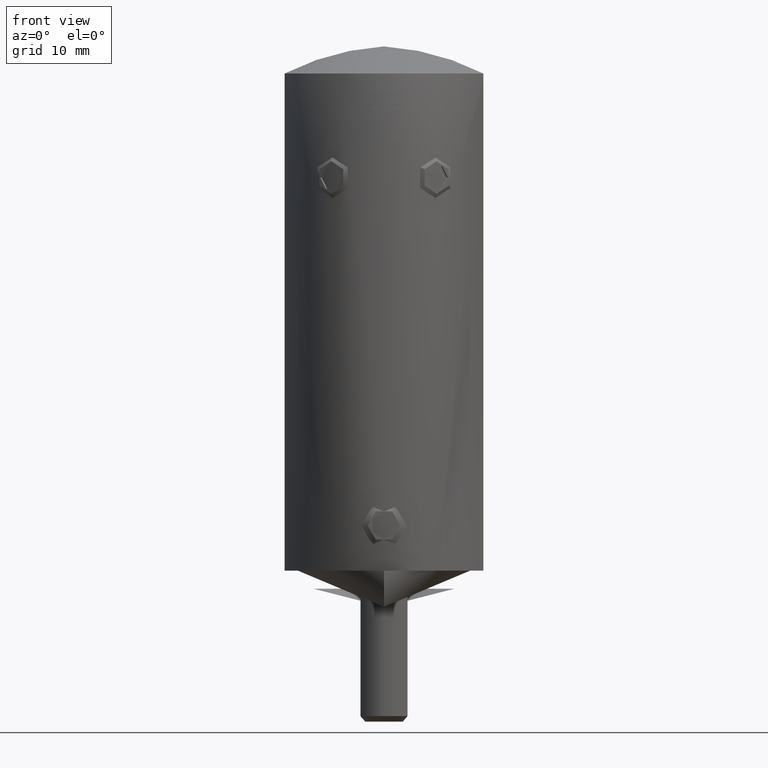
[diagram: clean part render]
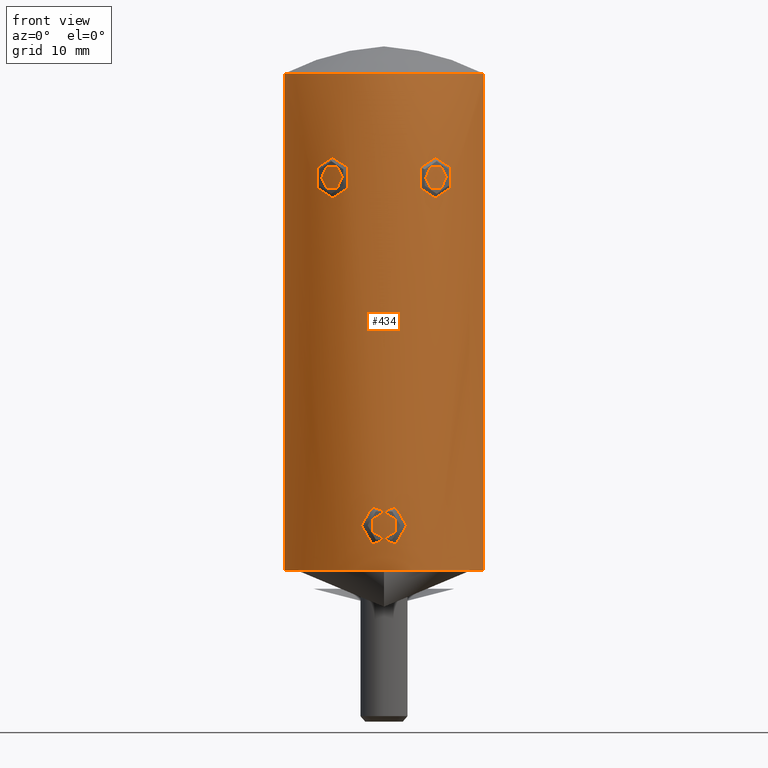
[diagram: same view with one face highlighted and labeled with its STEP entity id]
A machine part, front view. The second image highlights one B-rep face of the part: STEP entity #434.
In plain terms, the highlighted cylindrical surface (partial cylindrical patch) has radius 11 mm, axis along (0, 0, 1).
Its self-contained STEP definition (entity closure, byte-faithful):
#54 = B_SPLINE_CURVE_WITH_KNOTS ( 'NONE', 3,
 ( #2927, #1413, #3292, #6622, #21931, #10059, #18655, #17163, #8357, #10125, #22150, #4951, #8559, #11806, #16935, #6541, #22072, #8500, #20363, #1484, #13435, #11875, #13506, #22219, #6842, #11653, #6698, #20436, #18879, #1558, #8420, #13580, #15333, #5023, #1347, #17088, #15114, #15190, #13368, #3150 ),
 .UNSPECIFIED., .F., .F.,
 ( 4, 2, 2, 2, 2, 2, 2, 2, 2, 2, 2, 2, 2, 2, 2, 2, 2, 2, 2, 4 ),
 ( 4.569706188381530106E-18, 0.0007447471617333573145, 0.001489494323466710075, 0.002234241485200063378, 0.002978988646933415814, 0.004468482970400122420, 0.005957977293866829026, 0.007447471617333535632, 0.008936965940800243105, 0.01191595458773367713, 0.01340544891120040369, 0.01489494323466713024, 0.01638443755813385680, 0.01787393188160057989, 0.01861867904333395357, 0.01936342620506732379, 0.02085292052853405381, 0.02159766769026742056, 0.02234241485200078384, 0.02383190917546752080 ),
 .UNSPECIFIED. ) ;
#119 = CARTESIAN_POINT ( 'NONE',  ( -1.813320843293642483E-15, -10.99999999999999645, 2.584844900694855063 ) ) ;
#130 = CARTESIAN_POINT ( 'NONE',  ( 7.083958268796568092, -8.418567494383852434, 45.42891471491062561 ) ) ;
#245 = CARTESIAN_POINT ( 'NONE',  ( -5.967326013728599499, -9.242198139794622236, 45.91528120711718230 ) ) ;
#301 = VERTEX_POINT ( 'NONE', #12813 ) ;
#320 = CARTESIAN_POINT ( 'NONE',  ( -7.804981806833529490, -7.751274673826406669, 43.81765462899171126 ) ) ;
#392 = CARTESIAN_POINT ( 'NONE',  ( 1.535022905125253079, -10.89323192799169604, 6.918116975734399432 ) ) ;
#401 = CARTESIAN_POINT ( 'NONE',  ( -5.264747622690101103, -9.659641724171692090, 45.83722599151862198 ) ) ;
#402 = CARTESIAN_POINT ( 'NONE',  ( 9.168876221615315458, -6.077448697450544834, 43.81600431467556689 ) ) ;
#434 = ADVANCED_FACE ( 'NONE', ( #6985, #5948, #20171, #15067 ), #10449, .T. ) ;
#465 = CARTESIAN_POINT ( 'NONE',  ( 1.543890676010165386, -10.89363039259129273, 3.069276441871684469 ) ) ;
#543 = CARTESIAN_POINT ( 'NONE',  ( 2.430721202019303195, -10.72812621128811195, 4.371317447606209328 ) ) ;
#625 = CARTESIAN_POINT ( 'NONE',  ( 0.002621827913309107781, -10.99999968754628021, 7.415153783528229070 ) ) ;
#635 = CARTESIAN_POINT ( 'NONE',  ( 9.235293332214252970, -5.976038060906659233, 44.79945591862028209 ) ) ;
#1018 = ORIENTED_EDGE ( 'NONE', *, *, #13071, .F. ) ;
#1028 = VERTEX_POINT ( 'NONE', #119 ) ;
#1040 = CARTESIAN_POINT ( 'NONE',  ( -4.355607442891392900, -10.10160472704698975, 41.68007258356627176 ) ) ;
#1112 = CARTESIAN_POINT ( 'NONE',  ( -1.261211241403978667, -10.92831925419362626, 2.905472548706910185 ) ) ;
#1172 = DIRECTION ( 'NONE',  ( 1.000000000000000000, 0.000000000000000000, 0.000000000000000000 ) ) ;
#1182 = CARTESIAN_POINT ( 'NONE',  ( 10.36446980822711872, -3.690835795071915282, 37.26007699895405523 ) ) ;
#1258 = CARTESIAN_POINT ( 'NONE',  ( -1.268443744210189239, -10.93091935414429905, 7.108644643610205094 ) ) ;
#1329 = CARTESIAN_POINT ( 'NONE',  ( -0.3276201267070146250, -10.99632626431258409, 7.399832416807043955 ) ) ;
#1347 = CARTESIAN_POINT ( 'NONE',  ( -10.73363410085024405, -2.417583941322503982, 36.57834139585172295 ) ) ;
#1393 = CARTESIAN_POINT ( 'NONE',  ( 10.93266799829689440, -1.239499988441308931, 36.25128392030593005 ) ) ;
#1397 = VECTOR ( 'NONE', #21452, 1000.000000000000000 ) ;
#1413 = CARTESIAN_POINT ( 'NONE',  ( -10.99999999999998934, -0.2522254579425806664, 53.39940828047591737 ) ) ;
#1484 = CARTESIAN_POINT ( 'NONE',  ( -9.169022805507466956, -6.077224059141694390, 43.81796395058150040 ) ) ;
#1500 = CARTESIAN_POINT ( 'NONE',  ( 4.138493009041316562, -10.19248796723455541, 45.09683115607417392 ) ) ;
#1536 = CARTESIAN_POINT ( 'NONE',  ( -5.264602615324019297, -9.659732878582312665, 41.16277964135916534 ) ) ;
#1558 = CARTESIAN_POINT ( 'NONE',  ( -10.07994095445507199, -4.407312253728409956, 37.87915800364847740 ) ) ;
#1575 = CARTESIAN_POINT ( 'NONE',  ( 3.545063004570461196, -10.41309407878493154, 43.50247619131341281 ) ) ;
#1597 = CARTESIAN_POINT ( 'NONE',  ( 5.689463253177241775, -9.415786239710421057, 41.08485959924116315 ) ) ;
#1608 = DIRECTION ( 'NONE',  ( -0.000000000000000000, -0.000000000000000000, 1.000000000000000000 ) ) ;
#1658 = B_SPLINE_CURVE_WITH_KNOTS ( 'NONE', 3,
 ( #1575, #6932, #20448, #12030, #15208, #20381, #1500, #13521, #22308, #3237, #16952, #10143, #3308, #5112, #13951, #1943, #20876, #15637, #5336, #3801, #130, #8720, #5493, #19253, #17462, #10426, #3586, #12164 ),
 .UNSPECIFIED., .F., .F.,
 ( 4, 2, 2, 2, 2, 2, 2, 2, 2, 2, 2, 2, 2, 4 ),
 ( 0.5000000000000000000, 0.5625000000000016653, 0.5937500000000017764, 0.6250000000000019984, 0.6562500000000022204, 0.6875000000000024425, 0.7187500000000026645, 0.7500000000000028866, 0.7812500000000031086, 0.8125000000000033307, 0.8750000000000031086, 0.9062500000000026645, 0.9375000000000022204, 1.000000000000000000 ),
 .UNSPECIFIED. ) ;
#1943 = CARTESIAN_POINT ( 'NONE',  ( 5.970656882540882116, -9.240046677388182417, 45.91502748698402314 ) ) ;
#1988 = CARTESIAN_POINT ( 'NONE',  ( -4.717684471826848913, -9.941608254227404018, 45.60877343995291966 ) ) ;
#2509 = ORIENTED_EDGE ( 'NONE', *, *, #12993, .T. ) ;
#2685 = CARTESIAN_POINT ( 'NONE',  ( -2.179285043678784284, -10.78236625296382556, 3.788823219971172218 ) ) ;
#2689 = ORIENTED_EDGE ( 'NONE', *, *, #16911, .F. ) ;
#2823 = DIRECTION ( 'NONE',  ( -0.000000000000000000, -0.000000000000000000, 1.000000000000000000 ) ) ;
#2927 = CARTESIAN_POINT ( 'NONE',  ( -10.99999999999999645, 3.179853121175712002E-15, 53.39940828047591737 ) ) ;
#2980 = CARTESIAN_POINT ( 'NONE',  ( -4.139399588588112522, -10.19210995349174986, 41.90222231646872331 ) ) ;
#3038 = CARTESIAN_POINT ( 'NONE',  ( 5.126284629172893403, -9.733679403218731707, 41.20864326721935100 ) ) ;
#3044 = CARTESIAN_POINT ( 'NONE',  ( -10.99999999999999645, 1.347111479062088010E-15, 58.00000000000000000 ) ) ;
#3054 = CARTESIAN_POINT ( 'NONE',  ( -4.722979850324801276, -9.935418067239126572, 41.40451927373678842 ) ) ;
#3129 = CARTESIAN_POINT ( 'NONE',  ( -5.689946788311072368, -9.415494047968376634, 41.08483023268967571 ) ) ;
#3150 = CARTESIAN_POINT ( 'NONE',  ( -10.99999999999999645, 1.353269207583812273E-15, 36.14600281952412786 ) ) ;
#3237 = CARTESIAN_POINT ( 'NONE',  ( 4.723918369379720872, -9.934956473713365099, 45.59595233822931704 ) ) ;
#3255 = CARTESIAN_POINT ( 'NONE',  ( 7.618695975550138222, -7.934712000149043654, 42.42702881918065572 ) ) ;
#3269 = CARTESIAN_POINT ( 'NONE',  ( -7.805173626811875209, -7.751081515202912442, 43.50247619131341281 ) ) ;
#3286 = EDGE_CURVE ( 'NONE', #19995, #1028, #21209, .T. ) ;
#3292 = CARTESIAN_POINT ( 'NONE',  ( -10.99135156056391693, -0.4987275175918595704, 53.36875522293463092 ) ) ;
#3308 = CARTESIAN_POINT ( 'NONE',  ( 5.267424675921898114, -9.658170671119970407, 45.83795955608639616 ) ) ;
#3341 = CARTESIAN_POINT ( 'NONE',  ( 10.99999999999999645, -1.832169210965423057E-20, 53.39940828047591737 ) ) ;
#3586 = CARTESIAN_POINT ( 'NONE',  ( 7.805226028912490399, -7.751028747393309715, 43.81562291544130261 ) ) ;
#3638 = VERTEX_POINT ( 'NONE', #5500 ) ;
#3702 = CARTESIAN_POINT ( 'NONE',  ( -3.865003218479963198, -10.29904843934486713, 44.71000965139074168 ) ) ;
#3773 = DIRECTION ( 'NONE',  ( -0.000000000000000000, -0.000000000000000000, 1.000000000000000000 ) ) ;
#3801 = CARTESIAN_POINT ( 'NONE',  ( 6.867361557435126329, -8.598340926928944583, 45.60877343997567124 ) ) ;
#3852 = CARTESIAN_POINT ( 'NONE',  ( 9.186107045077074318, -6.051109553789102868, 41.83785624538884207 ) ) ;
#3930 = CARTESIAN_POINT ( 'NONE',  ( 1.995493121734534858, -10.81788920119726960, 3.524738894744726458 ) ) ;
#4015 = CARTESIAN_POINT ( 'NONE',  ( 1.116343252719524504, -10.94426300031696009, 7.169244775428262884 ) ) ;
#4025 = CARTESIAN_POINT ( 'NONE',  ( 9.631011627530943642, -5.316813198380810235, 47.65461018336076648 ) ) ;
#4356 = LINE ( 'NONE', #7937, #1397 ) ;
#4421 = CARTESIAN_POINT ( 'NONE',  ( -0.3315329495192520515, -10.99999999999999822, 2.584844930053908030 ) ) ;
#4500 = CARTESIAN_POINT ( 'NONE',  ( -0.8104466578491293927, -10.97117418873382455, 7.291497780559780928 ) ) ;
#4513 = CARTESIAN_POINT ( 'NONE',  ( 10.99999999999999289, 0.000000000000000000, 55.00000000000000000 ) ) ;
#4574 = CARTESIAN_POINT ( 'NONE',  ( -2.256864148904698109, -10.76618397735614430, 6.071739856479844377 ) ) ;
#4636 = CARTESIAN_POINT ( 'NONE',  ( 10.95786264964114132, -0.9932367454756375613, 36.21171868174418051 ) ) ;
#4673 = CIRCLE ( 'NONE', #18471, 10.99999999999999289 ) ;
#4777 = CARTESIAN_POINT ( 'NONE',  ( 4.721090920897333731, -9.936299440280055961, 41.40577892337500288 ) ) ;
#4791 = CARTESIAN_POINT ( 'NONE',  ( -7.572403671502473621, -7.979692977154612343, 42.28070653199637263 ) ) ;
#4863 = CARTESIAN_POINT ( 'NONE',  ( -6.861096738142905771, -8.599075392163483045, 41.40577892343836197 ) ) ;
#4873 = VERTEX_POINT ( 'NONE', #4513 ) ;
#4917 = CARTESIAN_POINT ( 'NONE',  ( 7.757859172115715296, -7.799509769101687695, 42.86600142989421158 ) ) ;
#4951 = CARTESIAN_POINT ( 'NONE',  ( -10.29255199365515772, -3.892950636535779552, 50.72570193885132284 ) ) ;
#4991 = CARTESIAN_POINT ( 'NONE',  ( 7.425485977187488373, -8.116079469776769528, 42.02587819805969360 ) ) ;
#5023 = CARTESIAN_POINT ( 'NONE',  ( -10.68044981376455560, -2.641693695686942789, 36.66960072601213483 ) ) ;
#5065 = CARTESIAN_POINT ( 'NONE',  ( -3.545061720958730955, -10.41309451578122669, 43.49999999999998579 ) ) ;
#5112 = CARTESIAN_POINT ( 'NONE',  ( 5.548377568054563724, -9.499554189081811373, 45.89959423356607005 ) ) ;
#5225 = LINE ( 'NONE', #8269, #18437 ) ;
#5242 = CARTESIAN_POINT ( 'NONE',  ( -10.99999999999999645, 1.353269207583812273E-15, 36.14600281952412786 ) ) ;
#5336 = CARTESIAN_POINT ( 'NONE',  ( 6.503923870768374194, -8.872542175008756971, 45.79025270535446879 ) ) ;
#5493 = CARTESIAN_POINT ( 'NONE',  ( 7.426268274342174180, -8.115367407106797160, 44.97289511913715643 ) ) ;
#5500 = CARTESIAN_POINT ( 'NONE',  ( -10.99999999999999289, 1.347111479062087813E-15, 55.00000000000000000 ) ) ;
#5533 = CARTESIAN_POINT ( 'NONE',  ( -7.560285272212968088, -7.990662585790829553, 44.71466949273472835 ) ) ;
#5534 = CARTESIAN_POINT ( 'NONE',  ( 0.000000000000000000, 0.000000000000000000, 0.000000000000000000 ) ) ;
#5609 = CARTESIAN_POINT ( 'NONE',  ( 1.265772666320305051, -10.93117442413804596, 2.890181047733279662 ) ) ;
#5620 = CARTESIAN_POINT ( 'NONE',  ( -6.500053701618306867, -8.875404604138990905, 45.79194129288713810 ) ) ;
#5693 = CARTESIAN_POINT ( 'NONE',  ( -5.546932442110414918, -9.500409793932190539, 45.89942136837100861 ) ) ;
#5694 = CARTESIAN_POINT ( 'NONE',  ( 10.87563798187002639, -1.664838547025348170, 52.95395550353870107 ) ) ;
#5771 = CARTESIAN_POINT ( 'NONE',  ( 2.381829622707508420, -10.73922843645829062, 4.217404884509523555 ) ) ;
#5779 = CARTESIAN_POINT ( 'NONE',  ( 9.899005222555114614, -4.801057188939706677, 49.01143292936338725 ) ) ;
#5842 = CARTESIAN_POINT ( 'NONE',  ( 2.256039582267046484, -10.76635616934929729, 3.926755654190321465 ) ) ;
#5850 = CARTESIAN_POINT ( 'NONE',  ( 9.284403859855997254, -5.900227396288967974, 45.29100354759611236 ) ) ;
#5948 = FACE_BOUND ( 'NONE', #7524, .T. ) ;
#6001 = CARTESIAN_POINT ( 'NONE',  ( 9.932215519004349957, -4.736873953609045174, 38.23098244837986215 ) ) ;
#6040 = EDGE_CURVE ( 'NONE', #17920, #20346, #21011, .T. ) ;
#6174 = CARTESIAN_POINT ( 'NONE',  ( -2.382856163159502216, -10.73900133748870367, 5.779816620065276744 ) ) ;
#6175 = CARTESIAN_POINT ( 'NONE',  ( -4.855665494462400922, -9.871452515081939438, 41.32930433189208941 ) ) ;
#6229 = CARTESIAN_POINT ( 'NONE',  ( 0.000000000000000000, 0.000000000000000000, 55.00000000000000000 ) ) ;
#6319 = CARTESIAN_POINT ( 'NONE',  ( -2.430626934631305414, -10.72814813956289903, 4.370817171179572469 ) ) ;
#6450 = CARTESIAN_POINT ( 'NONE',  ( -2.495562452211243176, -10.71322910456392208, 4.683362971068651959 ) ) ;
#6508 = B_SPLINE_CURVE_WITH_KNOTS ( 'NONE', 3,
 ( #15377, #320, #17578, #17504, #5533, #8979, #20917, #8905, #14234, #9062, #10610, #5620, #12362, #19299, #245, #12435, #5693, #401, #18783, #1988, #7262, #20990, #10691, #3702, #8472, #12287, #8539, #5065 ),
 .UNSPECIFIED., .F., .F.,
 ( 4, 2, 2, 2, 2, 2, 2, 2, 2, 2, 2, 2, 2, 4 ),
 ( 0.5000000000000000000, 0.5625000000000011102, 0.5937500000000009992, 0.6250000000000008882, 0.6562500000000008882, 0.6875000000000007772, 0.7187500000000006661, 0.7500000000000006661, 0.7812500000000005551, 0.8125000000000004441, 0.8750000000000006661, 0.9062500000000008882, 0.9375000000000011102, 1.000000000000000000 ),
 .UNSPECIFIED. ) ;
#6541 = CARTESIAN_POINT ( 'NONE',  ( -9.717539187263653844, -5.158495255006232405, 48.11555026792651546 ) ) ;
#6622 = CARTESIAN_POINT ( 'NONE',  ( -10.95879317033270084, -0.9815245868461859313, 53.25273729518058730 ) ) ;
#6698 = CARTESIAN_POINT ( 'NONE',  ( -9.663109020658437132, -5.264292116124048349, 39.02877772619955721 ) ) ;
#6711 = EDGE_LOOP ( 'NONE', ( #21058, #9198 ) ) ;
#6736 = CARTESIAN_POINT ( 'NONE',  ( 4.854168774372749517, -9.872201088604475316, 41.33002558955961092 ) ) ;
#6749 = CARTESIAN_POINT ( 'NONE',  ( -7.436173316924135968, -8.109199354610241883, 42.01615640583560207 ) ) ;
#6805 = CIRCLE ( 'NONE', #20828, 11.00000000000000000 ) ;
#6842 = CARTESIAN_POINT ( 'NONE',  ( -9.350936937472789978, -5.796166265188768207, 40.36935326248440248 ) ) ;
#6932 = CARTESIAN_POINT ( 'NONE',  ( 3.545320702733715468, -10.41300634729821084, 43.81765462897767094 ) ) ;
#6985 = FACE_OUTER_BOUND ( 'NONE', #16956, .T. ) ;
#7115 = CARTESIAN_POINT ( 'NONE',  ( 10.99999999999999645, -2.446736237841549440E-16, 36.14600281952412786 ) ) ;
#7262 = CARTESIAN_POINT ( 'NONE',  ( -4.461155432050976977, -10.05747660313178216, 45.42891471473497234 ) ) ;
#7264 = CARTESIAN_POINT ( 'NONE',  ( 10.95866947143712267, -0.9833694920435153142, 53.25229652795616175 ) ) ;
#7319 = CARTESIAN_POINT ( 'NONE',  ( -1.813320843293642483E-15, -10.99999999999999645, 2.584844900694855063 ) ) ;
#7404 = CARTESIAN_POINT ( 'NONE',  ( 10.44101067740119859, -3.465226348147298019, 51.31766995334636761 ) ) ;
#7460 = EDGE_CURVE ( 'NONE', #7677, #301, #20656, .T. ) ;
#7524 = EDGE_LOOP ( 'NONE', ( #11275, #11568 ) ) ;
#7562 = CARTESIAN_POINT ( 'NONE',  ( 1.893470199354566619, -10.83645095076631648, 6.594738271637389460 ) ) ;
#7677 = VERTEX_POINT ( 'NONE', #13415 ) ;
#7937 = CARTESIAN_POINT ( 'NONE',  ( 10.99999999999999645, 0.000000000000000000, 58.00000000000000000 ) ) ;
#8042 = CARTESIAN_POINT ( 'NONE',  ( -0.6530340314606966068, -10.98180644577150566, 7.337544000691751833 ) ) ;
#8054 = VERTEX_POINT ( 'NONE', #20499 ) ;
#8062 = EDGE_CURVE ( 'NONE', #14803, #10398, #54, .T. ) ;
#8104 = CARTESIAN_POINT ( 'NONE',  ( 10.83404395048749436, -1.965159232283671287, 36.40957279708971583 ) ) ;
#8113 = CARTESIAN_POINT ( 'NONE',  ( -2.511703974928243266, -10.70940442520010549, 4.842739291575843374 ) ) ;
#8187 = CARTESIAN_POINT ( 'NONE',  ( 9.494267281368065525, -5.555888141879218978, 39.69273062005098041 ) ) ;
#8194 = CARTESIAN_POINT ( 'NONE',  ( -3.545131718512484209, -10.41307068562699456, 43.18034840469320557 ) ) ;
#8256 = CARTESIAN_POINT ( 'NONE',  ( 3.852577257761929719, -10.30409849753085361, 42.28070653193253747 ) ) ;
#8262 = DIRECTION ( 'NONE',  ( -0.000000000000000000, -0.000000000000000000, 1.000000000000000000 ) ) ;
#8269 = CARTESIAN_POINT ( 'NONE',  ( -10.99999999999999645, 1.347111479062088010E-15, 58.00000000000000000 ) ) ;
#8270 = CARTESIAN_POINT ( 'NONE',  ( -7.169969619405103245, -8.342990027552721344, 41.68006691379328998 ) ) ;
#8328 = CARTESIAN_POINT ( 'NONE',  ( 6.859476513099561856, -8.600386782210662773, 41.40451927374203223 ) ) ;
#8357 = CARTESIAN_POINT ( 'NONE',  ( -10.72066440796315945, -2.470073037757268608, 52.38616429040236255 ) ) ;
#8400 = CARTESIAN_POINT ( 'NONE',  ( -7.711835532714734320, -7.844220296486905220, 42.72097590634438546 ) ) ;
#8420 = CARTESIAN_POINT ( 'NONE',  ( -10.15198952329512316, -4.239602061929555354, 37.71287690491389810 ) ) ;
#8464 = CARTESIAN_POINT ( 'NONE',  ( 3.560550981741097853, -10.40786153031612216, 43.18513662166942169 ) ) ;
#8472 = CARTESIAN_POINT ( 'NONE',  ( -3.791161425048452216, -10.32624101775442149, 44.57151056501535891 ) ) ;
#8479 = CARTESIAN_POINT ( 'NONE',  ( -6.107397005234322052, -9.150183763009810178, 41.10060669161274660 ) ) ;
#8498 = ORIENTED_EDGE ( 'NONE', *, *, #8062, .T. ) ;
#8500 = CARTESIAN_POINT ( 'NONE',  ( -9.393611147796807614, -5.732497373815455433, 46.24232392334779718 ) ) ;
#8539 = CARTESIAN_POINT ( 'NONE',  ( -3.544992605608412006, -10.41311804559576437, 43.81562291544154419 ) ) ;
#8559 = CARTESIAN_POINT ( 'NONE',  ( -10.19190643202290580, -4.145583814347568286, 50.30960074465255616 ) ) ;
#8720 = CARTESIAN_POINT ( 'NONE',  ( 7.347629493549233004, -8.186942449926732479, 45.09543569674767838 ) ) ;
#8905 = CARTESIAN_POINT ( 'NONE',  ( -7.169343856100156565, -8.343527073195014410, 45.32063242537913084 ) ) ;
#8979 = CARTESIAN_POINT ( 'NONE',  ( -7.424473110114693242, -8.117006898751634836, 44.97580249688937215 ) ) ;
#8980 = CARTESIAN_POINT ( 'NONE',  ( 10.84032913580386115, -1.878513215223655664, 52.82601412267307239 ) ) ;
#9062 = CARTESIAN_POINT ( 'NONE',  ( -6.858650215820415674, -8.601027968341583119, 45.59595233828814997 ) ) ;
#9064 = DIRECTION ( 'NONE',  ( 1.000000000000000000, 0.000000000000000000, 0.000000000000000000 ) ) ;
#9128 = CARTESIAN_POINT ( 'NONE',  ( 2.511631889561101616, -10.70942133164946419, 4.839907027236586501 ) ) ;
#9179 = EDGE_CURVE ( 'NONE', #16429, #4873, #4356, .T. ) ;
#9198 = ORIENTED_EDGE ( 'NONE', *, *, #20936, .T. ) ;
#9213 = CARTESIAN_POINT ( 'NONE',  ( 0.3284569030257759592, -10.99628005262926855, 2.600367236534803173 ) ) ;
#9453 = CARTESIAN_POINT ( 'NONE',  ( 10.99144955070029717, -0.4993093784154238879, 36.15920211634575310 ) ) ;
#9623 = CARTESIAN_POINT ( 'NONE',  ( -2.495363705458068626, -10.71327480273098764, 5.317531738196786151 ) ) ;
#9690 = CARTESIAN_POINT ( 'NONE',  ( 0.002621827913309107781, -10.99999968754628021, 7.415153783528229070 ) ) ;
#9746 = DIRECTION ( 'NONE',  ( 1.000000000000000000, 0.000000000000000000, 0.000000000000000000 ) ) ;
#9826 = B_SPLINE_CURVE_WITH_KNOTS ( 'NONE', 3,
 ( #19376, #19301, #17580, #7264, #21076, #5694, #8980, #21231, #17737, #12521, #16001, #14157, #7404, #20991, #12595, #10861, #5779, #16155, #4025, #16078, #17806, #5850, #635, #402, #12668, #12437, #14078, #3852, #14406, #17890, #15908, #8187, #16754, #9962, #20192, #6001, #11551, #16833, #1182, #18485, #18558, #15017, #8104, #1393, #4636, #9453, #21387, #14942 ),
 .UNSPECIFIED., .F., .F.,
 ( 4, 2, 2, 2, 2, 2, 2, 2, 2, 2, 2, 2, 2, 2, 2, 2, 2, 2, 2, 2, 2, 2, 2, 4 ),
 ( 0.02373305353298708550, 0.02447535600702939462, 0.02521765848107170027, 0.02595996095511400939, 0.02670226342915631504, 0.02744456590319862416, 0.02818686837724092981, 0.02967147332532553070, 0.03115607827341012812, 0.03264068322149472900, 0.03412528816957932642, 0.03560989311766392384, 0.03709449806574852820, 0.03783680053979082691, 0.03857910301383312562, 0.04006370796191772304, 0.04080601043596002175, 0.04154831291000232740, 0.04303291785808692482, 0.04377522033212922353, 0.04451752280617152224, 0.04600212775425612660, 0.04674443022829842531, 0.04748673270234073096 ),
 .UNSPECIFIED. ) ;
#9894 = CARTESIAN_POINT ( 'NONE',  ( 7.073224096385062332, -8.425471602213498556, 41.58076750943425282 ) ) ;
#9908 = CARTESIAN_POINT ( 'NONE',  ( -3.791855413014942222, -10.32598738232645630, 42.42702881912836688 ) ) ;
#9962 = CARTESIAN_POINT ( 'NONE',  ( 9.667618367043555594, -5.248993232710275514, 39.03413880142026215 ) ) ;
#9967 = CARTESIAN_POINT ( 'NONE',  ( -7.805269536801048069, -7.750984935891165328, 43.34488697247427069 ) ) ;
#10025 = CARTESIAN_POINT ( 'NONE',  ( 6.501307959275925974, -8.874460939697680573, 41.20867836921562599 ) ) ;
#10027 = LINE ( 'NONE', #3044, #19453 ) ;
#10059 = CARTESIAN_POINT ( 'NONE',  ( -10.87562171476231221, -1.664741374695972498, 52.95389381010411967 ) ) ;
#10125 = CARTESIAN_POINT ( 'NONE',  ( -10.58764482631107384, -3.006227149099422569, 51.88764023705200401 ) ) ;
#10143 = CARTESIAN_POINT ( 'NONE',  ( 5.127724821338820682, -9.732930862167021857, 45.79194129289088977 ) ) ;
#10398 = VERTEX_POINT ( 'NONE', #5242 ) ;
#10426 = CARTESIAN_POINT ( 'NONE',  ( 7.757978377606357334, -7.799384945154954174, 44.13318355612461374 ) ) ;
#10449 = CYLINDRICAL_SURFACE ( 'NONE', #18259, 10.99999999999999645 ) ;
#10603 = CARTESIAN_POINT ( 'NONE',  ( 2.179889364274961050, -10.78223673683558559, 6.210013498346570238 ) ) ;
#10610 = CARTESIAN_POINT ( 'NONE',  ( -6.744884210445044381, -8.690802149329062587, 45.67017007466466083 ) ) ;
#10649 = VERTEX_POINT ( 'NONE', #11493 ) ;
#10665 = CARTESIAN_POINT ( 'NONE',  ( 10.99999999999999645, 0.000000000000000000, 58.00000000000000000 ) ) ;
#10691 = CARTESIAN_POINT ( 'NONE',  ( -4.038582169251328402, -10.23222862806719036, 44.97289511912595117 ) ) ;
#10759 = CARTESIAN_POINT ( 'NONE',  ( 0.6509923734589307953, -10.98190638562794597, 2.662025886931077778 ) ) ;
#10851 = CARTESIAN_POINT ( 'NONE',  ( 2.383584876163842292, -10.73884196754025488, 5.778017131772699599 ) ) ;
#10861 = CARTESIAN_POINT ( 'NONE',  ( 9.995745178423527832, -4.598577528994647778, 49.45529242598477992 ) ) ;
#10931 = CARTESIAN_POINT ( 'NONE',  ( 2.495530447803788743, -10.71323517469553188, 5.316057407631497256 ) ) ;
#11275 = ORIENTED_EDGE ( 'NONE', *, *, #16285, .T. ) ;
#11328 = CARTESIAN_POINT ( 'NONE',  ( -1.996185883738254230, -10.81775451556606527, 6.474240922415253507 ) ) ;
#11408 = CARTESIAN_POINT ( 'NONE',  ( -1.996072047007856565, -10.81778173646561036, 3.525478995045355557 ) ) ;
#11464 = CARTESIAN_POINT ( 'NONE',  ( 0.000000000000000000, 0.000000000000000000, 58.00000000000000000 ) ) ;
#11489 = CARTESIAN_POINT ( 'NONE',  ( -1.892899697451093211, -10.83654340792175397, 3.404725381007188467 ) ) ;
#11493 = CARTESIAN_POINT ( 'NONE',  ( 3.545063004570461196, -10.41309407878493154, 43.50247619131341281 ) ) ;
#11551 = CARTESIAN_POINT ( 'NONE',  ( 10.08132311885423427, -4.417631596342757483, 37.86656821793637562 ) ) ;
#11568 = ORIENTED_EDGE ( 'NONE', *, *, #3286, .T. ) ;
#11617 = CARTESIAN_POINT ( 'NONE',  ( 5.546824059628596260, -9.500468616226713792, 41.10060669162183444 ) ) ;
#11629 = CARTESIAN_POINT ( 'NONE',  ( -2.511729057886775696, -10.70939854239877853, 5.157936335757343116 ) ) ;
#11653 = CARTESIAN_POINT ( 'NONE',  ( -9.544125100363123337, -5.472224506626520046, 39.45850021085124126 ) ) ;
#11772 = CARTESIAN_POINT ( 'NONE',  ( 6.106245008757658965, -9.150969996447985366, 41.10036188872194174 ) ) ;
#11806 = CARTESIAN_POINT ( 'NONE',  ( -9.995870164935325874, -4.598195464162685653, 49.45573754384128762 ) ) ;
#11875 = CARTESIAN_POINT ( 'NONE',  ( -9.156828884951636383, -6.095285974169084575, 42.32467338520977052 ) ) ;
#12030 = CARTESIAN_POINT ( 'NONE',  ( 3.792050123238138504, -10.32591424576499506, 44.57324526192558523 ) ) ;
#12164 = CARTESIAN_POINT ( 'NONE',  ( 7.805174582279891027, -7.751080553066898027, 43.49999999999999289 ) ) ;
#12287 = CARTESIAN_POINT ( 'NONE',  ( -3.609166875344445025, -10.39185009976731955, 44.13318355612474875 ) ) ;
#12325 = EDGE_CURVE ( 'NONE', #301, #7677, #6508, .T. ) ;
#12331 = CARTESIAN_POINT ( 'NONE',  ( 11.00000000000000000, 0.000000000000000000, 0.000000000000000000 ) ) ;
#12355 = CARTESIAN_POINT ( 'NONE',  ( 0.6619940357765661254, -10.98427163760044500, 7.351015105423766904 ) ) ;
#12362 = CARTESIAN_POINT ( 'NONE',  ( -6.371619301521676881, -8.968193291040515547, 45.83795955608943729 ) ) ;
#12435 = CARTESIAN_POINT ( 'NONE',  ( -5.687535236479408063, -9.416960716874118731, 45.91502748698402314 ) ) ;
#12437 = CARTESIAN_POINT ( 'NONE',  ( 9.155280128689614827, -6.097610312192391468, 42.58146745158162361 ) ) ;
#12448 = EDGE_LOOP ( 'NONE', ( #20288, #18512 ) ) ;
#12521 = CARTESIAN_POINT ( 'NONE',  ( 10.63235953451128424, -2.826142311900722959, 52.05523553867126907 ) ) ;
#12595 = CARTESIAN_POINT ( 'NONE',  ( 10.19334211656566325, -4.142174966946746473, 50.31575412906218503 ) ) ;
#12661 = CARTESIAN_POINT ( 'NONE',  ( 2.178857699642325674, -10.78245327803369946, 3.788117446808509481 ) ) ;
#12668 = CARTESIAN_POINT ( 'NONE',  ( 9.151289692457540426, -6.103598936795921581, 43.32308385316925126 ) ) ;
#12813 = CARTESIAN_POINT ( 'NONE',  ( -7.805173626811875209, -7.751081515202912442, 43.50247619131341281 ) ) ;
#12956 = ORIENTED_EDGE ( 'NONE', *, *, #9179, .T. ) ;
#12993 = EDGE_CURVE ( 'NONE', #8054, #17920, #6805, .T. ) ;
#13026 = EDGE_CURVE ( 'NONE', #16429, #20346, #9826, .T. ) ;
#13066 = CARTESIAN_POINT ( 'NONE',  ( -4.039565103482215314, -10.23183765175528492, 42.02587819799639846 ) ) ;
#13071 = EDGE_CURVE ( 'NONE', #8054, #10398, #10027, .T. ) ;
#13137 = CARTESIAN_POINT ( 'NONE',  ( -4.472066354679625100, -10.05085535448292866, 41.58076750943951794 ) ) ;
#13281 = CARTESIAN_POINT ( 'NONE',  ( -2.430803093630610423, -10.72810763095448294, 5.628396886907468755 ) ) ;
#13294 = ORIENTED_EDGE ( 'NONE', *, *, #6040, .T. ) ;
#13340 = CARTESIAN_POINT ( 'NONE',  ( 7.561172679316501721, -7.989822004944651113, 42.28730717386591209 ) ) ;
#13349 = CARTESIAN_POINT ( 'NONE',  ( -3.866604510490146751, -10.29844442217394196, 42.28730717392923566 ) ) ;
#13368 = CARTESIAN_POINT ( 'NONE',  ( -10.99999999999999645, -0.4996091848325736606, 36.14600281952412075 ) ) ;
#13415 = CARTESIAN_POINT ( 'NONE',  ( -3.545061720958730955, -10.41309451578122669, 43.49999999999998579 ) ) ;
#13435 = CARTESIAN_POINT ( 'NONE',  ( -9.151137685892109630, -6.103827110021398994, 43.32066602409264533 ) ) ;
#13485 = CARTESIAN_POINT ( 'NONE',  ( -7.793681161087475218, -7.762708218600122834, 43.18513662161963396 ) ) ;
#13506 = CARTESIAN_POINT ( 'NONE',  ( -9.180302095915839899, -6.060518049954423780, 41.83116569363650683 ) ) ;
#13521 = CARTESIAN_POINT ( 'NONE',  ( 4.356278970466075151, -10.10132510513249571, 45.32063242525347135 ) ) ;
#13563 = CARTESIAN_POINT ( 'NONE',  ( -6.745148029850557947, -8.690586106776338582, 41.33002558949048932 ) ) ;
#13580 = CARTESIAN_POINT ( 'NONE',  ( -10.36534291987990564, -3.702449709549171075, 37.24861618029458299 ) ) ;
#13632 = CARTESIAN_POINT ( 'NONE',  ( -5.126326831171271081, -9.733644506126353235, 41.20867836914754889 ) ) ;
#13951 = CARTESIAN_POINT ( 'NONE',  ( 5.690929114862000482, -9.414910090859141434, 45.91528120711719652 ) ) ;
#13972 = DIRECTION ( 'NONE',  ( -0.000000000000000000, -0.000000000000000000, 1.000000000000000000 ) ) ;
#14078 = CARTESIAN_POINT ( 'NONE',  ( 9.161691856020864222, -6.088012139515936560, 42.33388664005983770 ) ) ;
#14157 = CARTESIAN_POINT ( 'NONE',  ( 10.48974706952189706, -3.315559160206880573, 51.50839104086826126 ) ) ;
#14234 = CARTESIAN_POINT ( 'NONE',  ( -7.070710384247550273, -8.427563085332641535, 45.42151148473176647 ) ) ;
#14394 = CARTESIAN_POINT ( 'NONE',  ( 1.660782927813421628, -10.87454360747573823, 6.818738680830403354 ) ) ;
#14406 = CARTESIAN_POINT ( 'NONE',  ( 9.204154736256588976, -6.023743178888257610, 41.58995823227915878 ) ) ;
#14800 = CARTESIAN_POINT ( 'NONE',  ( -1.661524859630388873, -10.87442308525896451, 3.181962713572204837 ) ) ;
#14803 = VERTEX_POINT ( 'NONE', #18700 ) ;
#14942 = CARTESIAN_POINT ( 'NONE',  ( 10.99999999999999645, -2.446736237841549440E-16, 36.14600281952412786 ) ) ;
#15017 = CARTESIAN_POINT ( 'NONE',  ( 10.73887330626719283, -2.424918566267704190, 36.56511376614759712 ) ) ;
#15067 = FACE_BOUND ( 'NONE', #12448, .T. ) ;
#15114 = CARTESIAN_POINT ( 'NONE',  ( -10.86813653608445840, -1.715520375343545956, 36.35483671402330685 ) ) ;
#15172 = CARTESIAN_POINT ( 'NONE',  ( -5.968756082477892022, -9.241264710472401944, 41.08485959924115605 ) ) ;
#15190 = CARTESIAN_POINT ( 'NONE',  ( -10.96611358357113453, -0.9909392377880396063, 36.19764238659529099 ) ) ;
#15208 = CARTESIAN_POINT ( 'NONE',  ( 3.867749033186012486, -10.29801531235516876, 44.71466949263200519 ) ) ;
#15231 = CARTESIAN_POINT ( 'NONE',  ( 7.346014400757161056, -8.188394633988851368, 41.90222231646866646 ) ) ;
#15333 = CARTESIAN_POINT ( 'NONE',  ( -10.50514627013608049, -3.293040702412900256, 36.98298912679695150 ) ) ;
#15368 = CARTESIAN_POINT ( 'NONE',  ( 5.265096904046274950, -9.659446964882913989, 41.16269285543137357 ) ) ;
#15377 = CARTESIAN_POINT ( 'NONE',  ( -7.805173626811875209, -7.751081515202912442, 43.50247619131341281 ) ) ;
#15637 = CARTESIAN_POINT ( 'NONE',  ( 6.374115018154713930, -8.966432038738386012, 45.83722599151861488 ) ) ;
#15908 = CARTESIAN_POINT ( 'NONE',  ( 9.348376104478699489, -5.800334579119827971, 40.38316064725977839 ) ) ;
#15930 = VECTOR ( 'NONE', #13972, 1000.000000000000000 ) ;
#16001 = CARTESIAN_POINT ( 'NONE',  ( 10.58529593870019525, -2.996537337913906640, 51.87671259237895782 ) ) ;
#16069 = CARTESIAN_POINT ( 'NONE',  ( 2.511799944583966937, -10.70938191707798381, 5.156688389980409681 ) ) ;
#16078 = CARTESIAN_POINT ( 'NONE',  ( 9.474578436458171993, -5.590818455961028555, 46.72472478465108736 ) ) ;
#16155 = CARTESIAN_POINT ( 'NONE',  ( 9.716873937847541498, -5.159730167714409177, 48.11205741290072524 ) ) ;
#16285 = EDGE_CURVE ( 'NONE', #1028, #19995, #17953, .T. ) ;
#16304 = CARTESIAN_POINT ( 'NONE',  ( 7.805174582279891027, -7.751080553066898027, 43.49999999999999289 ) ) ;
#16429 = VERTEX_POINT ( 'NONE', #3341 ) ;
#16461 = CARTESIAN_POINT ( 'NONE',  ( -1.533328306870322955, -10.89347143110831162, 3.080631270009510647 ) ) ;
#16619 = CARTESIAN_POINT ( 'NONE',  ( -1.813320843293642483E-15, -10.99999999999999645, 2.584844900694855063 ) ) ;
#16669 = EDGE_CURVE ( 'NONE', #14803, #3638, #5225, .T. ) ;
#16690 = CARTESIAN_POINT ( 'NONE',  ( -3.545061720958730955, -10.41309451578122669, 43.49999999999998579 ) ) ;
#16754 = CARTESIAN_POINT ( 'NONE',  ( 9.549267367794351813, -5.461343020376404844, 39.46635467751321613 ) ) ;
#16761 = CARTESIAN_POINT ( 'NONE',  ( -1.115993498445678078, -10.94431255611213771, 2.830513048300592249 ) ) ;
#16816 = VERTEX_POINT ( 'NONE', #16304 ) ;
#16831 = CARTESIAN_POINT ( 'NONE',  ( 4.472313800696375630, -10.05072909387124014, 41.58066130422130158 ) ) ;
#16833 = CARTESIAN_POINT ( 'NONE',  ( 10.29467248690630576, -3.880316298225178429, 37.40243647866399357 ) ) ;
#16842 = CARTESIAN_POINT ( 'NONE',  ( -5.548035723529286756, -9.499777870733792540, 41.10036188874185825 ) ) ;
#16911 = EDGE_CURVE ( 'NONE', #3638, #4873, #4673, .T. ) ;
#16935 = CARTESIAN_POINT ( 'NONE',  ( -9.900029114979911782, -4.798964958663127334, 49.01627922780250657 ) ) ;
#16952 = CARTESIAN_POINT ( 'NONE',  ( 4.854478603077035714, -9.872058676049521253, 45.67017007466086653 ) ) ;
#16956 = EDGE_LOOP ( 'NONE', ( #1018, #2509, #13294, #18343, #12956, #2689, #16978, #8498 ) ) ;
#16975 = CARTESIAN_POINT ( 'NONE',  ( 3.623387571015020736, -10.38615267738856041, 42.87210132435337329 ) ) ;
#16978 = ORIENTED_EDGE ( 'NONE', *, *, #16669, .F. ) ;
#17047 = CARTESIAN_POINT ( 'NONE',  ( 5.968281494608199900, -9.241571220430625289, 41.08483023268966861 ) ) ;
#17088 = CARTESIAN_POINT ( 'NONE',  ( -10.82738350603337096, -1.955346398353032145, 36.42110247560447789 ) ) ;
#17163 = CARTESIAN_POINT ( 'NONE',  ( -10.76330588298242397, -2.278899339915491762, 52.54383026725725614 ) ) ;
#17462 = CARTESIAN_POINT ( 'NONE',  ( 7.619228165846853251, -7.934199434366099979, 44.57151056501542996 ) ) ;
#17504 = CARTESIAN_POINT ( 'NONE',  ( -7.618544885504148212, -7.934854943576326036, 44.57324526186121005 ) ) ;
#17567 = CARTESIAN_POINT ( 'NONE',  ( 0.8106894968023395931, -10.97114265804650657, 2.708653337319314680 ) ) ;
#17578 = CARTESIAN_POINT ( 'NONE',  ( -7.757151347530281349, -7.800205097538527532, 44.13663394500139248 ) ) ;
#17580 = CARTESIAN_POINT ( 'NONE',  ( 10.99147959650918871, -0.4968182983868810743, 53.36921144471412504 ) ) ;
#17645 = CARTESIAN_POINT ( 'NONE',  ( 2.431469541522509825, -10.72795581613280369, 5.625850491979971224 ) ) ;
#17727 = CARTESIAN_POINT ( 'NONE',  ( 1.998357958352909636, -10.81735236367631892, 6.471525135745437751 ) ) ;
#17737 = CARTESIAN_POINT ( 'NONE',  ( 10.72128936084500594, -2.467408373022283552, 52.38849049659414447 ) ) ;
#17806 = CARTESIAN_POINT ( 'NONE',  ( 9.403972630176104630, -5.707726091161573478, 46.25228794264832288 ) ) ;
#17880 = CARTESIAN_POINT ( 'NONE',  ( 2.256830909742690849, -10.76619328781119833, 6.071927192355263792 ) ) ;
#17890 = CARTESIAN_POINT ( 'NONE',  ( 9.276186270179691107, -5.912711176572029714, 40.85856367220498697 ) ) ;
#17920 = VERTEX_POINT ( 'NONE', #12331 ) ;
#17953 = B_SPLINE_CURVE_WITH_KNOTS ( 'NONE', 3,
 ( #16619, #4421, #18492, #16761, #1112, #16461, #14800, #11489, #11408, #2685, #19985, #18420, #6319, #6450, #8113, #11629, #9623, #13281, #6174, #4574, #20199, #11328, #20129, #21624, #1258, #4500, #8042, #1329, #18349, #9690 ),
 .UNSPECIFIED., .F., .F.,
 ( 4, 2, 2, 2, 2, 2, 2, 2, 2, 2, 2, 2, 2, 2, 4 ),
 ( 0.000000000000000000, 0.06249999999999972244, 0.09374999999999961142, 0.1249999999999995004, 0.1562499999999993894, 0.1874999999999992784, 0.2187499999999993339, 0.2499999999999993894, 0.2812499999999993894, 0.3124999999999995004, 0.3437499999999995559, 0.3749999999999996669, 0.4374999999999998335, 0.4687499999999998890, 0.5000000000000000000 ),
 .UNSPECIFIED. ) ;
#18259 = AXIS2_PLACEMENT_3D ( 'NONE', #11464, #2823, #1172 ) ;
#18343 = ORIENTED_EDGE ( 'NONE', *, *, #13026, .F. ) ;
#18349 = CARTESIAN_POINT ( 'NONE',  ( -0.1616220108472307682, -11.00003883473657673, 7.415315291338787418 ) ) ;
#18420 = CARTESIAN_POINT ( 'NONE',  ( -2.382999229834681820, -10.73896813810978657, 4.220662270624466750 ) ) ;
#18437 = VECTOR ( 'NONE', #1608, 1000.000000000000000 ) ;
#18471 = AXIS2_PLACEMENT_3D ( 'NONE', #6229, #21901, #9746 ) ;
#18485 = CARTESIAN_POINT ( 'NONE',  ( 10.49836223799335677, -3.290728428738955547, 36.99911946639046789 ) ) ;
#18492 = CARTESIAN_POINT ( 'NONE',  ( -0.6586619931418169482, -10.98452728325521477, 2.647857589405056000 ) ) ;
#18512 = ORIENTED_EDGE ( 'NONE', *, *, #12325, .T. ) ;
#18554 = CARTESIAN_POINT ( 'NONE',  ( 4.028696275618917078, -10.23842732507812059, 42.01615640570477694 ) ) ;
#18558 = CARTESIAN_POINT ( 'NONE',  ( 10.56284459901603157, -3.078509617056569336, 36.87986446901197723 ) ) ;
#18618 = CARTESIAN_POINT ( 'NONE',  ( 7.169889557034015759, -8.343046086292673635, 41.68007258356632150 ) ) ;
#18655 = CARTESIAN_POINT ( 'NONE',  ( -10.84083531602275663, -1.875746620144937982, 52.82786226949430386 ) ) ;
#18699 = CARTESIAN_POINT ( 'NONE',  ( 6.374260514313759174, -8.966341666394917809, 41.16277964137908896 ) ) ;
#18700 = CARTESIAN_POINT ( 'NONE',  ( -10.99999999999999645, 3.179853121175712002E-15, 53.39940828047591737 ) ) ;
#18772 = CARTESIAN_POINT ( 'NONE',  ( 4.355521960543881299, -10.10165211211724845, 41.68006691385870965 ) ) ;
#18783 = CARTESIAN_POINT ( 'NONE',  ( -5.123455516578109048, -9.735154540822913205, 45.79025270536585168 ) ) ;
#18844 = CARTESIAN_POINT ( 'NONE',  ( 7.805174582279891027, -7.751080553066898027, 43.49999999999999289 ) ) ;
#18857 = CARTESIAN_POINT ( 'NONE',  ( -6.373786854822536263, -8.966660593871331741, 41.16269285544048273 ) ) ;
#18879 = CARTESIAN_POINT ( 'NONE',  ( -9.937150968510630733, -4.720449298127605608, 38.23572788277226664 ) ) ;
#19253 = CARTESIAN_POINT ( 'NONE',  ( 7.562417526601152851, -7.988647556888967216, 44.71000965137952221 ) ) ;
#19299 = CARTESIAN_POINT ( 'NONE',  ( -6.105894110329288083, -9.151179188631042294, 45.89959423356302892 ) ) ;
#19301 = CARTESIAN_POINT ( 'NONE',  ( 10.99999999999999645, -0.2478373475758840760, 53.39940828047591026 ) ) ;
#19345 = CARTESIAN_POINT ( 'NONE',  ( 0.002621827913309107781, -10.99999968754628021, 7.415153783528229070 ) ) ;
#19368 = CARTESIAN_POINT ( 'NONE',  ( 0.1643935056627707780, -10.99999999999999822, 2.584844886136917097 ) ) ;
#19376 = CARTESIAN_POINT ( 'NONE',  ( 10.99999999999999645, -1.832169210965423057E-20, 53.39940828047591737 ) ) ;
#19453 = VECTOR ( 'NONE', #8262, 1000.000000000000000 ) ;
#19524 = CARTESIAN_POINT ( 'NONE',  ( 0.3311095054343895505, -10.99992139316568540, 7.414830767907109710 ) ) ;
#19605 = CARTESIAN_POINT ( 'NONE',  ( 2.495297978064225930, -10.71329013739204861, 4.682043413947006627 ) ) ;
#19985 = CARTESIAN_POINT ( 'NONE',  ( -2.257482614959108513, -10.76605286276670803, 3.929546619571041788 ) ) ;
#19995 = VERTEX_POINT ( 'NONE', #19345 ) ;
#20129 = CARTESIAN_POINT ( 'NONE',  ( -1.892943344138689588, -10.83654561251814030, 6.595331397874525159 ) ) ;
#20171 = FACE_BOUND ( 'NONE', #6711, .T. ) ;
#20192 = CARTESIAN_POINT ( 'NONE',  ( 9.731269890558168711, -5.130702321242055497, 38.82671386850731921 ) ) ;
#20199 = CARTESIAN_POINT ( 'NONE',  ( -2.177980241880006496, -10.78262365602483186, 6.213167996627056766 ) ) ;
#20200 = CARTESIAN_POINT ( 'NONE',  ( -3.609331322568743783, -10.39179767781439345, 42.86600142999874663 ) ) ;
#20261 = CARTESIAN_POINT ( 'NONE',  ( 3.669692314003290878, -10.37003170988428735, 42.72097590637631725 ) ) ;
#20275 = CARTESIAN_POINT ( 'NONE',  ( -7.073002140862612031, -8.425638656245578062, 41.58066130415794959 ) ) ;
#20288 = ORIENTED_EDGE ( 'NONE', *, *, #7460, .T. ) ;
#20346 = VERTEX_POINT ( 'NONE', #7115 ) ;
#20363 = CARTESIAN_POINT ( 'NONE',  ( -9.268073524593379631, -5.925988443663896987, 45.28526015571399910 ) ) ;
#20381 = CARTESIAN_POINT ( 'NONE',  ( 4.040842682857205048, -10.23133385095082204, 44.97580249699208821 ) ) ;
#20402 = CARTESIAN_POINT ( 'NONE',  ( 7.805122478971229683, -7.751133019999428164, 43.18034840470479452 ) ) ;
#20415 = CARTESIAN_POINT ( 'NONE',  ( -7.746623625623737297, -7.809668836176078877, 42.87210132440314680 ) ) ;
#20436 = CARTESIAN_POINT ( 'NONE',  ( -9.865857427622445996, -4.866926039614839716, 38.42771457943569402 ) ) ;
#20448 = CARTESIAN_POINT ( 'NONE',  ( 3.610266569493126632, -10.39146630121909176, 44.13663394487269898 ) ) ;
#20466 = CARTESIAN_POINT ( 'NONE',  ( 3.545063004570461196, -10.41309407878493154, 43.50247619131341281 ) ) ;
#20499 = CARTESIAN_POINT ( 'NONE',  ( -10.99999999999999822, 1.347111479062088405E-15, 0.000000000000000000 ) ) ;
#20656 = B_SPLINE_CURVE_WITH_KNOTS ( 'NONE', 3,
 ( #16690, #8194, #20200, #9908, #13349, #13066, #2980, #1040, #13137, #3054, #6175, #13632, #1536, #16842, #3129, #15172, #8479, #18857, #22201, #13563, #4863, #20275, #8270, #6749, #4791, #8400, #20415, #13485, #9967, #3269 ),
 .UNSPECIFIED., .F., .F.,
 ( 4, 2, 2, 2, 2, 2, 2, 2, 2, 2, 2, 2, 2, 2, 4 ),
 ( 0.000000000000000000, 0.06249999999999904243, 0.09374999999999919509, 0.1249999999999993616, 0.1562499999999995282, 0.1874999999999996669, 0.2187499999999998335, 0.2500000000000000000, 0.2812500000000001110, 0.3125000000000002776, 0.3437500000000003886, 0.3750000000000004996, 0.4375000000000008327, 0.4687500000000004441, 0.5000000000000000000 ),
 .UNSPECIFIED. ) ;
#20813 = B_SPLINE_CURVE_WITH_KNOTS ( 'NONE', 3,
 ( #18844, #20402, #4917, #3255, #13340, #4991, #15231, #18618, #9894, #8328, #22037, #10025, #18699, #11772, #17047, #1597, #11617, #15368, #3038, #6736, #4777, #16831, #18772, #18554, #8256, #20261, #16975, #8464, #21971, #20466 ),
 .UNSPECIFIED., .F., .F.,
 ( 4, 2, 2, 2, 2, 2, 2, 2, 2, 2, 2, 2, 2, 2, 4 ),
 ( 0.000000000000000000, 0.06249999999999987510, 0.09374999999999979183, 0.1249999999999996947, 0.1562499999999996114, 0.1874999999999995282, 0.2187499999999994171, 0.2499999999999993339, 0.2812499999999992784, 0.3124999999999992228, 0.3437499999999991673, 0.3749999999999991118, 0.4374999999999988898, 0.4687499999999994449, 0.5000000000000000000 ),
 .UNSPECIFIED. ) ;
#20828 = AXIS2_PLACEMENT_3D ( 'NONE', #5534, #3773, #9064 ) ;
#20876 = CARTESIAN_POINT ( 'NONE',  ( 6.107296624379058514, -9.150255390524780097, 45.89942136837099440 ) ) ;
#20909 = CARTESIAN_POINT ( 'NONE',  ( 1.890372269886378742, -10.83698242449020199, 3.402011649646480951 ) ) ;
#20917 = CARTESIAN_POINT ( 'NONE',  ( -7.346751575683107660, -8.187745515911998950, 45.09683115594851444 ) ) ;
#20936 = EDGE_CURVE ( 'NONE', #10649, #16816, #1658, .T. ) ;
#20990 = CARTESIAN_POINT ( 'NONE',  ( -4.137386364204858502, -10.19292499364912352, 45.09543569683551567 ) ) ;
#20991 = CARTESIAN_POINT ( 'NONE',  ( 10.29346247027996775, -3.890323998195829969, 50.72933105976477464 ) ) ;
#21011 = LINE ( 'NONE', #10665, #15930 ) ;
#21058 = ORIENTED_EDGE ( 'NONE', *, *, #21994, .T. ) ;
#21076 = CARTESIAN_POINT ( 'NONE',  ( 10.93489635769101120, -1.216236221673737905, 53.16739528019288485 ) ) ;
#21209 = B_SPLINE_CURVE_WITH_KNOTS ( 'NONE', 3,
 ( #625, #19524, #12355, #4015, #21222, #392, #14394, #7562, #17727, #10603, #17880, #10851, #17645, #10931, #16069, #9128, #19605, #543, #5771, #5842, #12661, #3930, #20909, #465, #5609, #17567, #10759, #9213, #19368, #7319 ),
 .UNSPECIFIED., .F., .F.,
 ( 4, 2, 2, 2, 2, 2, 2, 2, 2, 2, 2, 2, 2, 2, 4 ),
 ( 0.5000000000000000000, 0.5624999999999997780, 0.5937499999999997780, 0.6249999999999996669, 0.6562499999999996669, 0.6874999999999995559, 0.7187499999999995559, 0.7499999999999994449, 0.7812499999999993339, 0.8124999999999993339, 0.8437499999999994449, 0.8749999999999995559, 0.9374999999999997780, 0.9687500000000000000, 1.000000000000000000 ),
 .UNSPECIFIED. ) ;
#21222 = CARTESIAN_POINT ( 'NONE',  ( 1.263044276301096058, -10.92810671216107643, 7.093506342109615836 ) ) ;
#21231 = CARTESIAN_POINT ( 'NONE',  ( 10.76329257720631816, -2.278833159707696954, 52.54377521516333616 ) ) ;
#21387 = CARTESIAN_POINT ( 'NONE',  ( 10.99999999999999645, -0.2509467634706121220, 36.14600281952412786 ) ) ;
#21452 = DIRECTION ( 'NONE',  ( -0.000000000000000000, -0.000000000000000000, 1.000000000000000000 ) ) ;
#21624 = CARTESIAN_POINT ( 'NONE',  ( -1.543197030307326356, -10.89377639713939772, 6.931762059575689250 ) ) ;
#21901 = DIRECTION ( 'NONE',  ( -0.000000000000000000, -0.000000000000000000, 1.000000000000000000 ) ) ;
#21931 = CARTESIAN_POINT ( 'NONE',  ( -10.93454373632697596, -1.219124606259235355, 53.16612827335458036 ) ) ;
#21971 = CARTESIAN_POINT ( 'NONE',  ( 3.544934155488834726, -10.41313794452828745, 43.34488697248127664 ) ) ;
#21994 = EDGE_CURVE ( 'NONE', #16816, #10649, #20813, .T. ) ;
#22037 = CARTESIAN_POINT ( 'NONE',  ( 6.743819097475734381, -8.691603196884100768, 41.32930433182399099 ) ) ;
#22072 = CARTESIAN_POINT ( 'NONE',  ( -9.630588175924495786, -5.317624988652976725, 47.65264039846346833 ) ) ;
#22150 = CARTESIAN_POINT ( 'NONE',  ( -10.49113112059435160, -3.320822038456112235, 51.51752061989330400 ) ) ;
#22201 = CARTESIAN_POINT ( 'NONE',  ( -6.501357824665757512, -8.874438306706974089, 41.20864326728847971 ) ) ;
#22219 = CARTESIAN_POINT ( 'NONE',  ( -9.276586281824352298, -5.912086988701065415, 40.85549550818722508 ) ) ;
#22308 = CARTESIAN_POINT ( 'NONE',  ( 4.475048106235432144, -10.04951289078336174, 45.42151148479055678 ) ) ;